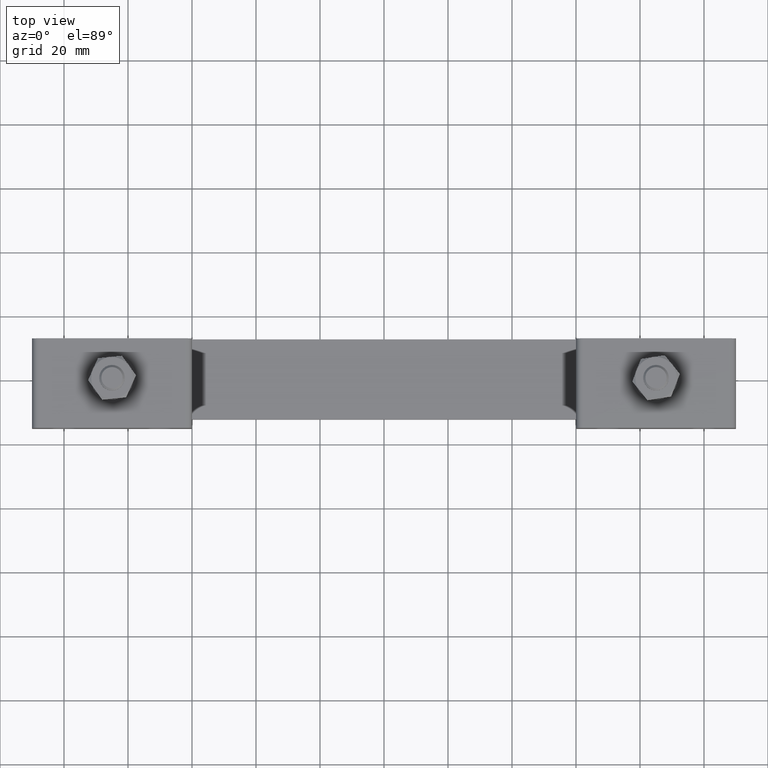
[diagram: clean part render]
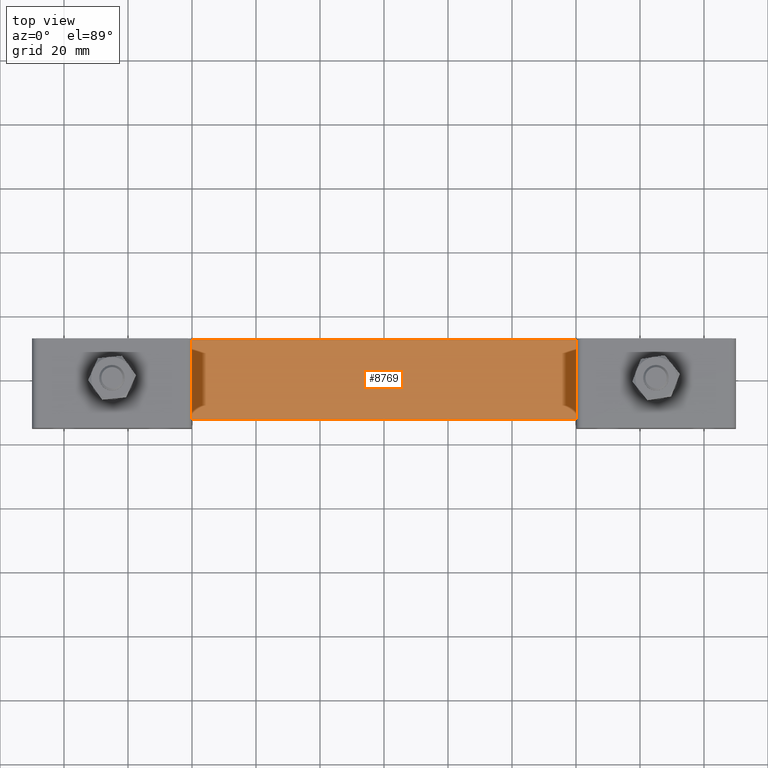
[diagram: same view with one face highlighted and labeled with its STEP entity id]
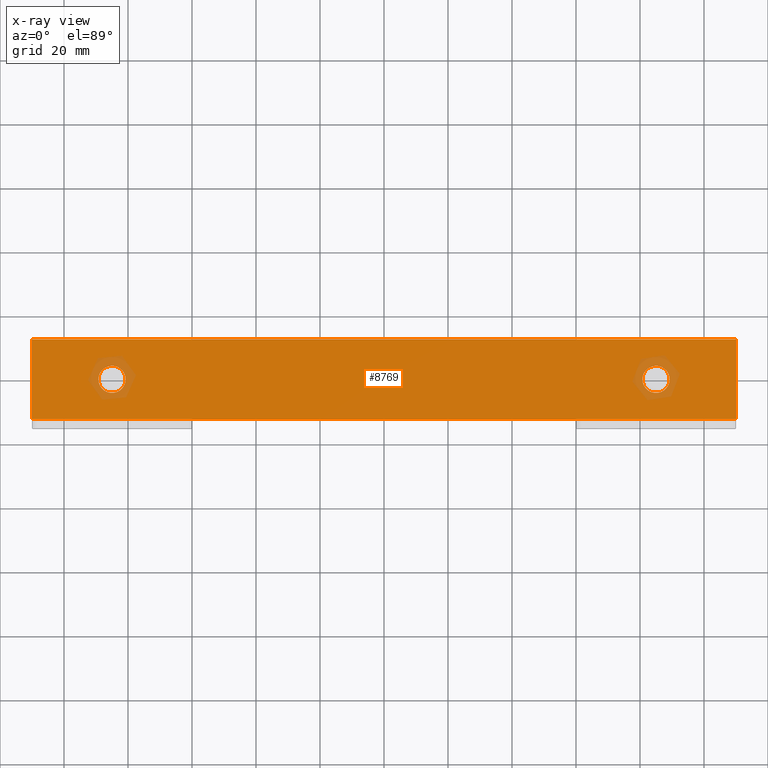
[diagram: x-ray of the same camera — body ghosted, the highlighted face saturated]
A machine part, top view. The second image highlights one B-rep face of the part: STEP entity #8769.
The next image is the same camera in x-ray: the body ghosted, the highlighted face saturated — about 3% of this face is hidden behind the body in this view.
In plain terms, the highlighted planar face has unit normal (0, 0, 1).
Its self-contained STEP definition (entity closure, byte-faithful):
#247 = DIRECTION ( 'NONE',  ( 0.0000000000000000000, 0.0000000000000000000, -1.000000000000000000 ) ) ;
#378 = CARTESIAN_POINT ( 'NONE',  ( -110.0000000000000000, -12.50000000000000000, 7.000000000000000000 ) ) ;
#1087 = AXIS2_PLACEMENT_3D ( 'NONE', #12670, #7627, #4299 ) ;
#1395 = VECTOR ( 'NONE', #10217, 1000.000000000000000 ) ;
#1448 = VECTOR ( 'NONE', #14807, 1000.000000000000000 ) ;
#1913 = ORIENTED_EDGE ( 'NONE', *, *, #10838, .T. ) ;
#2413 = AXIS2_PLACEMENT_3D ( 'NONE', #8122, #247, #3284 ) ;
#3284 = DIRECTION ( 'NONE',  ( -1.000000000000000000, 0.0000000000000000000, 0.0000000000000000000 ) ) ;
#3330 = LINE ( 'NONE', #4605, #14203 ) ;
#3782 = ORIENTED_EDGE ( 'NONE', *, *, #11102, .T. ) ;
#3844 = CARTESIAN_POINT ( 'NONE',  ( -110.0000000000000000, -12.50000000000000000, 7.000000000000000000 ) ) ;
#3866 = VERTEX_POINT ( 'NONE', #19875 ) ;
#3909 = VERTEX_POINT ( 'NONE', #18472 ) ;
#3913 = FACE_BOUND ( 'NONE', #10609, .T. ) ;
#4299 = DIRECTION ( 'NONE',  ( -1.000000000000000000, 0.0000000000000000000, 0.0000000000000000000 ) ) ;
#4605 = CARTESIAN_POINT ( 'NONE',  ( 110.0000000000000000, 12.50000000000000000, 7.000000000000000000 ) ) ;
#4678 = DIRECTION ( 'NONE',  ( 0.0000000000000000000, 1.000000000000000000, 0.0000000000000000000 ) ) ;
#5058 = DIRECTION ( 'NONE',  ( -1.000000000000000000, 0.0000000000000000000, 0.0000000000000000000 ) ) ;
#5162 = DIRECTION ( 'NONE',  ( -1.000000000000000000, 0.0000000000000000000, 0.0000000000000000000 ) ) ;
#5184 = CARTESIAN_POINT ( 'NONE',  ( -110.0000000000000000, 12.50000000000000000, 7.000000000000000000 ) ) ;
#5406 = AXIS2_PLACEMENT_3D ( 'NONE', #15042, #8568, #5162 ) ;
#5574 = VECTOR ( 'NONE', #15312, 1000.000000000000000 ) ;
#7014 = CARTESIAN_POINT ( 'NONE',  ( -110.0000000000000000, 12.50000000000000000, 7.000000000000000000 ) ) ;
#7124 = ORIENTED_EDGE ( 'NONE', *, *, #13085, .T. ) ;
#7141 = VERTEX_POINT ( 'NONE', #9004 ) ;
#7255 = EDGE_LOOP ( 'NONE', ( #10005, #7124, #19995, #1913 ) ) ;
#7381 = AXIS2_PLACEMENT_3D ( 'NONE', #19603, #16085, #5058 ) ;
#7627 = DIRECTION ( 'NONE',  ( 0.0000000000000000000, 0.0000000000000000000, -1.000000000000000000 ) ) ;
#7631 = CARTESIAN_POINT ( 'NONE',  ( 89.25000000000001400, 3.556240972597035200E-015, 7.000000000000000000 ) ) ;
#8020 = CARTESIAN_POINT ( 'NONE',  ( -89.25000000000001400, -1.778254193202100100E-014, 7.000000000000000000 ) ) ;
#8083 = EDGE_CURVE ( 'NONE', #19803, #18020, #10293, .T. ) ;
#8122 = CARTESIAN_POINT ( 'NONE',  ( -85.00000000000000000, -1.778254193202100100E-014, 7.000000000000000000 ) ) ;
#8161 = EDGE_CURVE ( 'NONE', #3909, #12072, #10044, .T. ) ;
#8568 = DIRECTION ( 'NONE',  ( 0.0000000000000000000, 0.0000000000000000000, -1.000000000000000000 ) ) ;
#8769 = ADVANCED_FACE ( 'NONE', ( #15784, #3913, #10992 ), #10089, .T. ) ;
#9004 = CARTESIAN_POINT ( 'NONE',  ( 110.0000000000000000, -12.50000000000000000, 7.000000000000000000 ) ) ;
#9374 = CIRCLE ( 'NONE', #5406, 4.250000000000003600 ) ;
#9896 = LINE ( 'NONE', #20115, #5574 ) ;
#10005 = ORIENTED_EDGE ( 'NONE', *, *, #8083, .T. ) ;
#10044 = CIRCLE ( 'NONE', #1087, 4.250000000000003600 ) ;
#10089 = PLANE ( 'NONE',  #12889 ) ;
#10217 = DIRECTION ( 'NONE',  ( 0.0000000000000000000, -1.000000000000000000, 0.0000000000000000000 ) ) ;
#10293 = LINE ( 'NONE', #7014, #1395 ) ;
#10609 = EDGE_LOOP ( 'NONE', ( #14581, #17564 ) ) ;
#10838 = EDGE_CURVE ( 'NONE', #12065, #19803, #9896, .T. ) ;
#10992 = FACE_OUTER_BOUND ( 'NONE', #7255, .T. ) ;
#11037 = VERTEX_POINT ( 'NONE', #7631 ) ;
#11102 = EDGE_CURVE ( 'NONE', #12072, #3909, #20003, .T. ) ;
#11735 = ORIENTED_EDGE ( 'NONE', *, *, #8161, .T. ) ;
#11753 = DIRECTION ( 'NONE',  ( 0.0000000000000000000, 0.0000000000000000000, 1.000000000000000000 ) ) ;
#12065 = VERTEX_POINT ( 'NONE', #19429 ) ;
#12072 = VERTEX_POINT ( 'NONE', #8020 ) ;
#12670 = CARTESIAN_POINT ( 'NONE',  ( -85.00000000000000000, -1.778254193202100100E-014, 7.000000000000000000 ) ) ;
#12889 = AXIS2_PLACEMENT_3D ( 'NONE', #3844, #11753, #20013 ) ;
#13085 = EDGE_CURVE ( 'NONE', #18020, #7141, #18706, .T. ) ;
#14203 = VECTOR ( 'NONE', #4678, 1000.000000000000000 ) ;
#14581 = ORIENTED_EDGE ( 'NONE', *, *, #19182, .T. ) ;
#14807 = DIRECTION ( 'NONE',  ( 1.000000000000000000, 0.0000000000000000000, 0.0000000000000000000 ) ) ;
#15042 = CARTESIAN_POINT ( 'NONE',  ( 85.00000000000000000, 3.035766082959410000E-015, 7.000000000000000000 ) ) ;
#15312 = DIRECTION ( 'NONE',  ( -1.000000000000000000, 5.519574696289839900E-017, 0.0000000000000000000 ) ) ;
#15775 = EDGE_CURVE ( 'NONE', #11037, #3866, #9374, .T. ) ;
#15784 = FACE_BOUND ( 'NONE', #16487, .T. ) ;
#16085 = DIRECTION ( 'NONE',  ( 0.0000000000000000000, 0.0000000000000000000, -1.000000000000000000 ) ) ;
#16487 = EDGE_LOOP ( 'NONE', ( #3782, #11735 ) ) ;
#17564 = ORIENTED_EDGE ( 'NONE', *, *, #15775, .T. ) ;
#18020 = VERTEX_POINT ( 'NONE', #20889 ) ;
#18472 = CARTESIAN_POINT ( 'NONE',  ( -80.75000000000000000, -1.726206704238337700E-014, 7.000000000000000000 ) ) ;
#18706 = LINE ( 'NONE', #378, #1448 ) ;
#19086 = CIRCLE ( 'NONE', #7381, 4.250000000000003600 ) ;
#19182 = EDGE_CURVE ( 'NONE', #3866, #11037, #19086, .T. ) ;
#19429 = CARTESIAN_POINT ( 'NONE',  ( 110.0000000000000000, 12.50000000000000000, 7.000000000000000000 ) ) ;
#19603 = CARTESIAN_POINT ( 'NONE',  ( 85.00000000000000000, 3.035766082959410000E-015, 7.000000000000000000 ) ) ;
#19803 = VERTEX_POINT ( 'NONE', #5184 ) ;
#19875 = CARTESIAN_POINT ( 'NONE',  ( 80.75000000000000000, 3.035766082959410000E-015, 7.000000000000000000 ) ) ;
#19995 = ORIENTED_EDGE ( 'NONE', *, *, #20869, .T. ) ;
#20003 = CIRCLE ( 'NONE', #2413, 4.250000000000003600 ) ;
#20013 = DIRECTION ( 'NONE',  ( 1.000000000000000000, 0.0000000000000000000, 0.0000000000000000000 ) ) ;
#20115 = CARTESIAN_POINT ( 'NONE',  ( -110.0000000000000000, 12.50000000000000000, 7.000000000000000000 ) ) ;
#20869 = EDGE_CURVE ( 'NONE', #7141, #12065, #3330, .T. ) ;
#20889 = CARTESIAN_POINT ( 'NONE',  ( -110.0000000000000000, -12.50000000000000000, 7.000000000000000000 ) ) ;